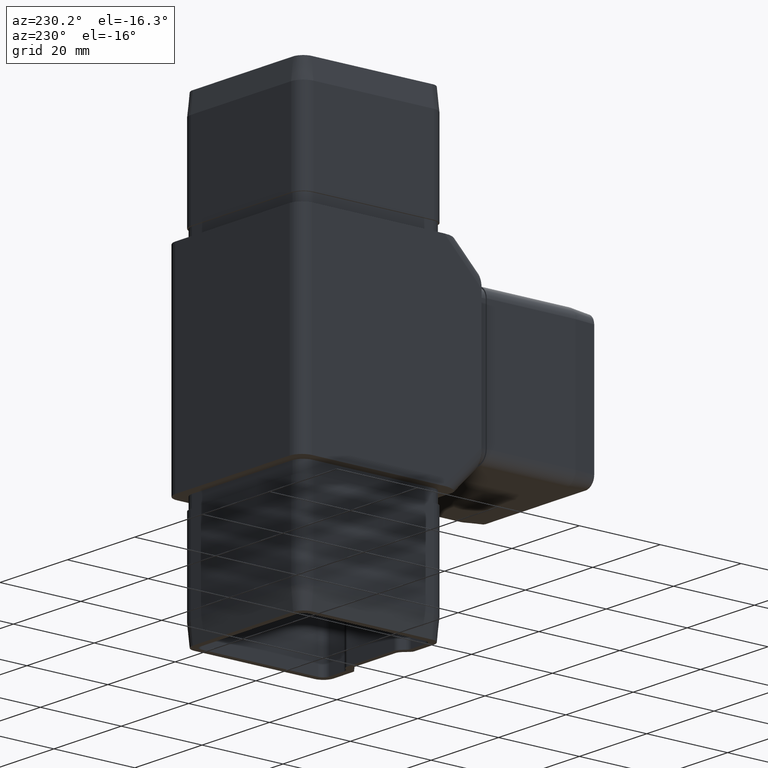
[diagram: clean part render]
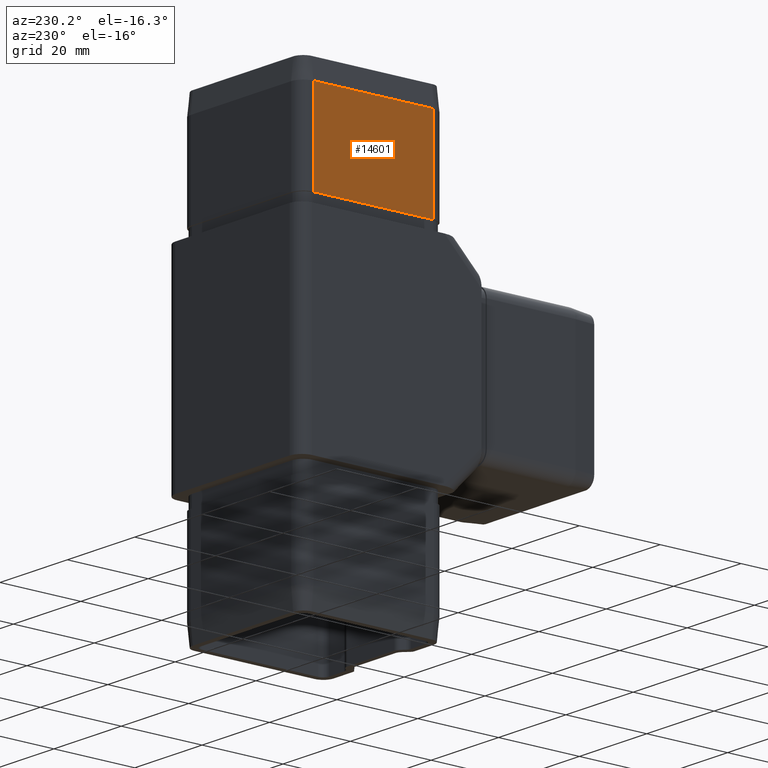
[diagram: same view with one face highlighted and labeled with its STEP entity id]
A machine part, auxiliary view. The second image highlights one B-rep face of the part: STEP entity #14601.
In plain terms, the highlighted planar face has unit normal (-1, 0, 0).
Its self-contained STEP definition (entity closure, byte-faithful):
#1790 = CARTESIAN_POINT ( 'NONE',  ( -17.90000000000000600, -12.39999999999999900, 50.00000000000000000 ) ) ;
#2045 = LINE ( 'NONE', #9440, #10537 ) ;
#2178 = VECTOR ( 'NONE', #7351, 1000.000000000000000 ) ;
#3124 = CARTESIAN_POINT ( 'NONE',  ( -17.90000000000000600, 17.39999999999999900, 50.00000000000000000 ) ) ;
#3313 = LINE ( 'NONE', #14120, #5794 ) ;
#4080 = AXIS2_PLACEMENT_3D ( 'NONE', #18898, #20496, #10929 ) ;
#4370 = EDGE_CURVE ( 'NONE', #10571, #19353, #3313, .T. ) ;
#4479 = VERTEX_POINT ( 'NONE', #3124 ) ;
#5794 = VECTOR ( 'NONE', #7791, 1000.000000000000000 ) ;
#6799 = ORIENTED_EDGE ( 'NONE', *, *, #18016, .F. ) ;
#7351 = DIRECTION ( 'NONE',  ( 0.0000000000000000000, 1.000000000000000000, 0.0000000000000000000 ) ) ;
#7791 = DIRECTION ( 'NONE',  ( -0.0000000000000000000, -0.0000000000000000000, 1.000000000000000000 ) ) ;
#8293 = CARTESIAN_POINT ( 'NONE',  ( -17.90000000000000600, -12.39999999999999900, 50.00000000000000000 ) ) ;
#9440 = CARTESIAN_POINT ( 'NONE',  ( -17.90000000000000200, 17.39999999999999900, 55.00000000000000000 ) ) ;
#10537 = VECTOR ( 'NONE', #20613, 1000.000000000000000 ) ;
#10571 = VERTEX_POINT ( 'NONE', #14280 ) ;
#10622 = CARTESIAN_POINT ( 'NONE',  ( -17.89999999999999900, -12.39999999999999900, 28.00000000000000000 ) ) ;
#10787 = VECTOR ( 'NONE', #16281, 1000.000000000000000 ) ;
#10929 = DIRECTION ( 'NONE',  ( -9.691192603222388300E-017, -1.000000000000000000, 0.0000000000000000000 ) ) ;
#11305 = LINE ( 'NONE', #8293, #10787 ) ;
#13425 = EDGE_LOOP ( 'NONE', ( #17662, #20504, #6799, #18164 ) ) ;
#14120 = CARTESIAN_POINT ( 'NONE',  ( -17.90000000000000200, -12.39999999999999900, 55.00000000000000000 ) ) ;
#14280 = CARTESIAN_POINT ( 'NONE',  ( -17.89999999999999900, -12.39999999999999900, 28.00000000000000000 ) ) ;
#14601 = ADVANCED_FACE ( 'NONE', ( #18497 ), #17253, .T. ) ;
#16008 = EDGE_CURVE ( 'NONE', #19353, #4479, #11305, .T. ) ;
#16281 = DIRECTION ( 'NONE',  ( 0.0000000000000000000, 1.000000000000000000, 0.0000000000000000000 ) ) ;
#16527 = EDGE_CURVE ( 'NONE', #4479, #17283, #2045, .T. ) ;
#17253 = PLANE ( 'NONE',  #4080 ) ;
#17283 = VERTEX_POINT ( 'NONE', #18249 ) ;
#17662 = ORIENTED_EDGE ( 'NONE', *, *, #16008, .T. ) ;
#18016 = EDGE_CURVE ( 'NONE', #10571, #17283, #20398, .T. ) ;
#18164 = ORIENTED_EDGE ( 'NONE', *, *, #4370, .T. ) ;
#18249 = CARTESIAN_POINT ( 'NONE',  ( -17.89999999999999900, 17.39999999999999900, 28.00000000000000000 ) ) ;
#18497 = FACE_OUTER_BOUND ( 'NONE', #13425, .T. ) ;
#18898 = CARTESIAN_POINT ( 'NONE',  ( -17.90000000000000200, 1.734723475976807900E-015, 55.00000000000000000 ) ) ;
#19353 = VERTEX_POINT ( 'NONE', #1790 ) ;
#20398 = LINE ( 'NONE', #10622, #2178 ) ;
#20496 = DIRECTION ( 'NONE',  ( -1.000000000000000000, 9.691192603222388300E-017, 0.0000000000000000000 ) ) ;
#20504 = ORIENTED_EDGE ( 'NONE', *, *, #16527, .T. ) ;
#20613 = DIRECTION ( 'NONE',  ( 0.0000000000000000000, 0.0000000000000000000, -1.000000000000000000 ) ) ;